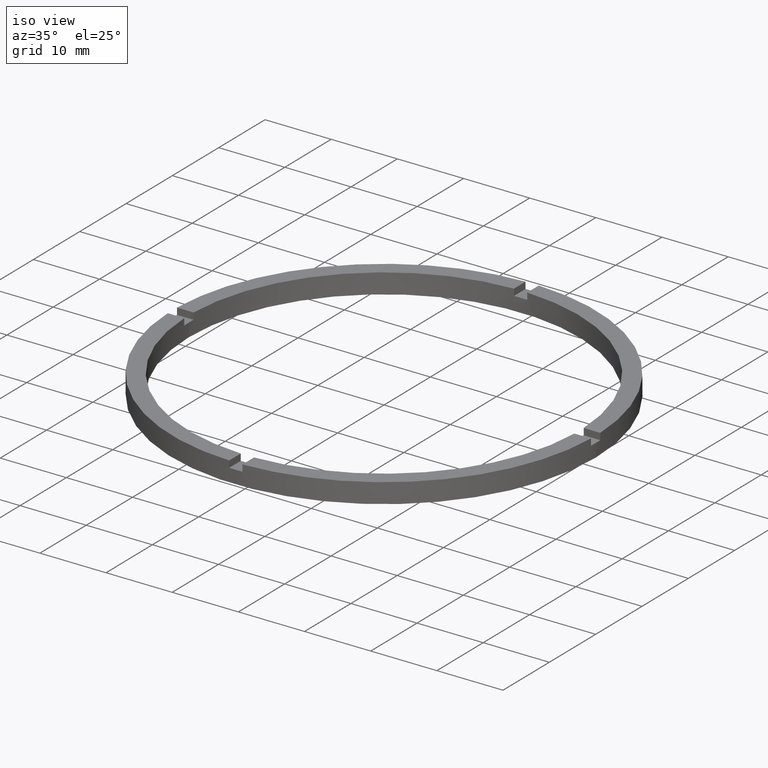
[diagram: clean part render]
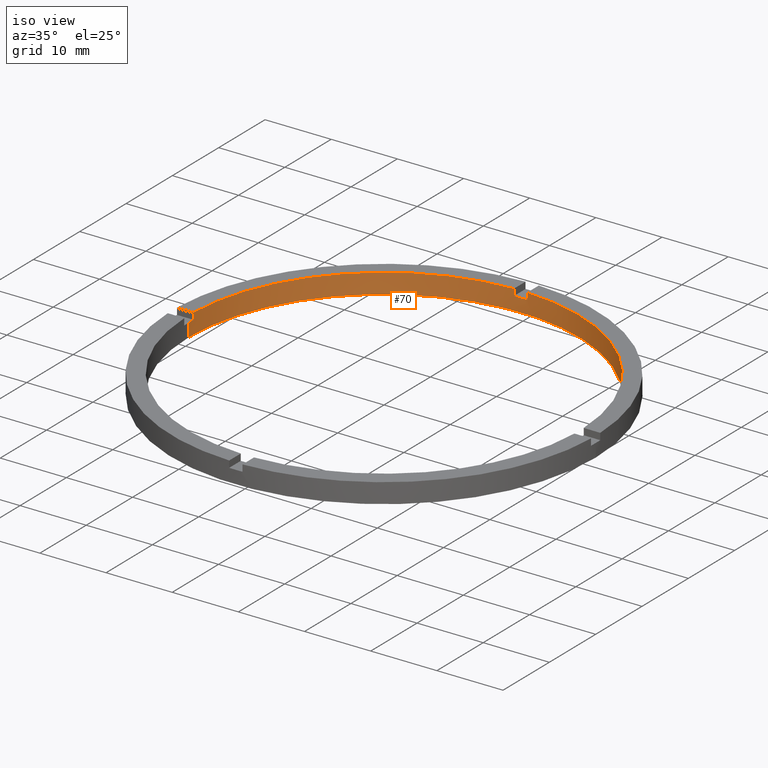
[diagram: same view with one face highlighted and labeled with its STEP entity id]
A machine part, iso view. The second image highlights one B-rep face of the part: STEP entity #70.
In plain terms, the highlighted cylindrical surface (partial cylindrical patch) has radius 29.5 mm, axis along (-0, -0, -1).
Its self-contained STEP definition (entity closure, byte-faithful):
#11 = DIRECTION ( 'NONE',  ( 0.000000000000000000, 0.000000000000000000, 1.000000000000000000 ) ) ;
#22 = DIRECTION ( 'NONE',  ( -0.000000000000000000, -0.000000000000000000, -1.000000000000000000 ) ) ;
#29 = CIRCLE ( 'NONE', #270, 29.50000000000000355 ) ;
#35 = ORIENTED_EDGE ( 'NONE', *, *, #543, .T. ) ;
#37 = VERTEX_POINT ( 'NONE', #202 ) ;
#42 = CARTESIAN_POINT ( 'NONE',  ( 0.000000000000000000, 0.000000000000000000, 2.000000000000000000 ) ) ;
#43 = CARTESIAN_POINT ( 'NONE',  ( 0.9999999999999754641, 29.48304597561114093, 3.000000000000000000 ) ) ;
#50 = CARTESIAN_POINT ( 'NONE',  ( 29.50000000000000355, 3.612708057484692393E-15, 2.000000000000000000 ) ) ;
#55 = DIRECTION ( 'NONE',  ( 1.000000000000000000, 0.000000000000000000, 0.000000000000000000 ) ) ;
#60 = CARTESIAN_POINT ( 'NONE',  ( 0.000000000000000000, 0.000000000000000000, 2.000000000000000000 ) ) ;
#62 = DIRECTION ( 'NONE',  ( 1.000000000000000000, 0.000000000000000000, 0.000000000000000000 ) ) ;
#66 = CARTESIAN_POINT ( 'NONE',  ( 0.000000000000000000, 0.000000000000000000, 3.000000000000000000 ) ) ;
#70 = ADVANCED_FACE ( 'NONE', ( #175 ), #139, .F. ) ;
#78 = CARTESIAN_POINT ( 'NONE',  ( 0.9999999999999754641, 29.48304597561114093, 3.000000000000000000 ) ) ;
#79 = EDGE_CURVE ( 'NONE', #484, #120, #665, .T. ) ;
#87 = EDGE_CURVE ( 'NONE', #204, #669, #181, .T. ) ;
#88 = DIRECTION ( 'NONE',  ( -1.000000000000000000, 0.000000000000000000, 0.000000000000000000 ) ) ;
#96 = EDGE_CURVE ( 'NONE', #698, #689, #439, .T. ) ;
#98 = VECTOR ( 'NONE', #117, 1000.000000000000000 ) ;
#105 = LINE ( 'NONE', #615, #98 ) ;
#111 = DIRECTION ( 'NONE',  ( -0.000000000000000000, -0.000000000000000000, -1.000000000000000000 ) ) ;
#114 = DIRECTION ( 'NONE',  ( -0.000000000000000000, -0.000000000000000000, -1.000000000000000000 ) ) ;
#115 = ORIENTED_EDGE ( 'NONE', *, *, #136, .T. ) ;
#116 = EDGE_CURVE ( 'NONE', #698, #669, #705, .T. ) ;
#117 = DIRECTION ( 'NONE',  ( -0.000000000000000000, -0.000000000000000000, -1.000000000000000000 ) ) ;
#120 = VERTEX_POINT ( 'NONE', #481 ) ;
#134 = EDGE_LOOP ( 'NONE', ( #165, #456, #275, #35, #552, #518, #548, #277, #238, #505, #115, #773 ) ) ;
#136 = EDGE_CURVE ( 'NONE', #544, #523, #105, .T. ) ;
#139 = CYLINDRICAL_SURFACE ( 'NONE', #525, 29.50000000000000355 ) ;
#164 = AXIS2_PLACEMENT_3D ( 'NONE', #254, #415, #490 ) ;
#165 = ORIENTED_EDGE ( 'NONE', *, *, #96, .F. ) ;
#169 = DIRECTION ( 'NONE',  ( 0.000000000000000000, 0.000000000000000000, 1.000000000000000000 ) ) ;
#175 = FACE_OUTER_BOUND ( 'NONE', #134, .T. ) ;
#181 = LINE ( 'NONE', #279, #445 ) ;
#184 = LINE ( 'NONE', #359, #694 ) ;
#185 = VECTOR ( 'NONE', #22, 1000.000000000000000 ) ;
#196 = CARTESIAN_POINT ( 'NONE',  ( 29.48304597561114448, 0.9999999999998412381, 2.000000000000000000 ) ) ;
#202 = CARTESIAN_POINT ( 'NONE',  ( -29.48304597561114093, 0.9999999999999746869, 3.000000000000000000 ) ) ;
#204 = VERTEX_POINT ( 'NONE', #350 ) ;
#211 = AXIS2_PLACEMENT_3D ( 'NONE', #635, #348, #591 ) ;
#217 = EDGE_CURVE ( 'NONE', #559, #37, #184, .T. ) ;
#221 = DIRECTION ( 'NONE',  ( 0.000000000000000000, 0.000000000000000000, 1.000000000000000000 ) ) ;
#238 = ORIENTED_EDGE ( 'NONE', *, *, #217, .F. ) ;
#254 = CARTESIAN_POINT ( 'NONE',  ( 0.000000000000000000, 0.000000000000000000, 2.000000000000000000 ) ) ;
#256 = EDGE_CURVE ( 'NONE', #484, #37, #722, .T. ) ;
#270 = AXIS2_PLACEMENT_3D ( 'NONE', #347, #757, #55 ) ;
#275 = ORIENTED_EDGE ( 'NONE', *, *, #87, .F. ) ;
#277 = ORIENTED_EDGE ( 'NONE', *, *, #256, .T. ) ;
#279 = CARTESIAN_POINT ( 'NONE',  ( 29.48304597561114448, 0.9999999999998412381, 3.000000000000000000 ) ) ;
#289 = CARTESIAN_POINT ( 'NONE',  ( -29.50000000000000355, 0.000000000000000000, 0.000000000000000000 ) ) ;
#314 = DIRECTION ( 'NONE',  ( 1.000000000000000000, 0.000000000000000000, 0.000000000000000000 ) ) ;
#322 = LINE ( 'NONE', #78, #578 ) ;
#325 = EDGE_CURVE ( 'NONE', #424, #120, #465, .T. ) ;
#347 = CARTESIAN_POINT ( 'NONE',  ( 0.000000000000000000, 0.000000000000000000, 3.000000000000000000 ) ) ;
#348 = DIRECTION ( 'NONE',  ( 0.000000000000000000, 0.000000000000000000, 1.000000000000000000 ) ) ;
#350 = CARTESIAN_POINT ( 'NONE',  ( 29.48304597561114448, 0.9999999999998412381, 3.000000000000000000 ) ) ;
#356 = EDGE_CURVE ( 'NONE', #424, #762, #322, .T. ) ;
#359 = CARTESIAN_POINT ( 'NONE',  ( -29.48304597561114093, 0.9999999999999746869, 3.000000000000000000 ) ) ;
#372 = CARTESIAN_POINT ( 'NONE',  ( -29.48304597561114093, 0.9999999999999746869, 2.000000000000000000 ) ) ;
#381 = EDGE_CURVE ( 'NONE', #689, #523, #542, .T. ) ;
#404 = VECTOR ( 'NONE', #114, 1000.000000000000000 ) ;
#414 = CARTESIAN_POINT ( 'NONE',  ( 29.50000000000000355, 3.612708057484692393E-15, 3.000000000000000000 ) ) ;
#415 = DIRECTION ( 'NONE',  ( 0.000000000000000000, -0.000000000000000000, 1.000000000000000000 ) ) ;
#424 = VERTEX_POINT ( 'NONE', #687 ) ;
#439 = LINE ( 'NONE', #414, #185 ) ;
#445 = VECTOR ( 'NONE', #111, 1000.000000000000000 ) ;
#449 = EDGE_CURVE ( 'NONE', #559, #544, #541, .T. ) ;
#452 = AXIS2_PLACEMENT_3D ( 'NONE', #66, #606, #62 ) ;
#456 = ORIENTED_EDGE ( 'NONE', *, *, #116, .T. ) ;
#465 = CIRCLE ( 'NONE', #164, 29.50000000000000355 ) ;
#481 = CARTESIAN_POINT ( 'NONE',  ( -1.000000000000024425, 29.48304597561113738, 2.000000000000000000 ) ) ;
#484 = VERTEX_POINT ( 'NONE', #605 ) ;
#490 = DIRECTION ( 'NONE',  ( 1.000000000000000000, 0.000000000000000000, 0.000000000000000000 ) ) ;
#500 = AXIS2_PLACEMENT_3D ( 'NONE', #60, #221, #314 ) ;
#501 = DIRECTION ( 'NONE',  ( 1.000000000000000000, 0.000000000000000000, 0.000000000000000000 ) ) ;
#505 = ORIENTED_EDGE ( 'NONE', *, *, #449, .T. ) ;
#511 = CARTESIAN_POINT ( 'NONE',  ( 0.000000000000000000, 0.000000000000000000, 3.000000000000000000 ) ) ;
#512 = CARTESIAN_POINT ( 'NONE',  ( 29.50000000000000355, 3.612708057484692393E-15, 0.000000000000000000 ) ) ;
#518 = ORIENTED_EDGE ( 'NONE', *, *, #325, .T. ) ;
#523 = VERTEX_POINT ( 'NONE', #289 ) ;
#525 = AXIS2_PLACEMENT_3D ( 'NONE', #511, #671, #88 ) ;
#541 = CIRCLE ( 'NONE', #500, 29.50000000000000355 ) ;
#542 = CIRCLE ( 'NONE', #211, 29.50000000000000355 ) ;
#543 = EDGE_CURVE ( 'NONE', #204, #762, #29, .T. ) ;
#544 = VERTEX_POINT ( 'NONE', #679 ) ;
#548 = ORIENTED_EDGE ( 'NONE', *, *, #79, .F. ) ;
#552 = ORIENTED_EDGE ( 'NONE', *, *, #356, .F. ) ;
#559 = VERTEX_POINT ( 'NONE', #372 ) ;
#578 = VECTOR ( 'NONE', #655, 1000.000000000000000 ) ;
#591 = DIRECTION ( 'NONE',  ( 1.000000000000000000, 0.000000000000000000, 0.000000000000000000 ) ) ;
#605 = CARTESIAN_POINT ( 'NONE',  ( -1.000000000000024425, 29.48304597561113738, 3.000000000000000000 ) ) ;
#606 = DIRECTION ( 'NONE',  ( 0.000000000000000000, 0.000000000000000000, 1.000000000000000000 ) ) ;
#615 = CARTESIAN_POINT ( 'NONE',  ( -29.50000000000000355, 0.000000000000000000, 3.000000000000000000 ) ) ;
#635 = CARTESIAN_POINT ( 'NONE',  ( 0.000000000000000000, 0.000000000000000000, 0.000000000000000000 ) ) ;
#655 = DIRECTION ( 'NONE',  ( 0.000000000000000000, 0.000000000000000000, 1.000000000000000000 ) ) ;
#665 = LINE ( 'NONE', #717, #404 ) ;
#669 = VERTEX_POINT ( 'NONE', #196 ) ;
#671 = DIRECTION ( 'NONE',  ( -0.000000000000000000, -0.000000000000000000, -1.000000000000000000 ) ) ;
#676 = AXIS2_PLACEMENT_3D ( 'NONE', #42, #169, #501 ) ;
#679 = CARTESIAN_POINT ( 'NONE',  ( -29.50000000000000355, 0.000000000000000000, 2.000000000000000000 ) ) ;
#687 = CARTESIAN_POINT ( 'NONE',  ( 0.9999999999999754641, 29.48304597561114093, 2.000000000000000000 ) ) ;
#689 = VERTEX_POINT ( 'NONE', #512 ) ;
#694 = VECTOR ( 'NONE', #11, 1000.000000000000000 ) ;
#698 = VERTEX_POINT ( 'NONE', #50 ) ;
#705 = CIRCLE ( 'NONE', #676, 29.50000000000000355 ) ;
#717 = CARTESIAN_POINT ( 'NONE',  ( -1.000000000000024425, 29.48304597561113738, 3.000000000000000000 ) ) ;
#722 = CIRCLE ( 'NONE', #452, 29.50000000000000355 ) ;
#757 = DIRECTION ( 'NONE',  ( 0.000000000000000000, 0.000000000000000000, 1.000000000000000000 ) ) ;
#762 = VERTEX_POINT ( 'NONE', #43 ) ;
#773 = ORIENTED_EDGE ( 'NONE', *, *, #381, .F. ) ;